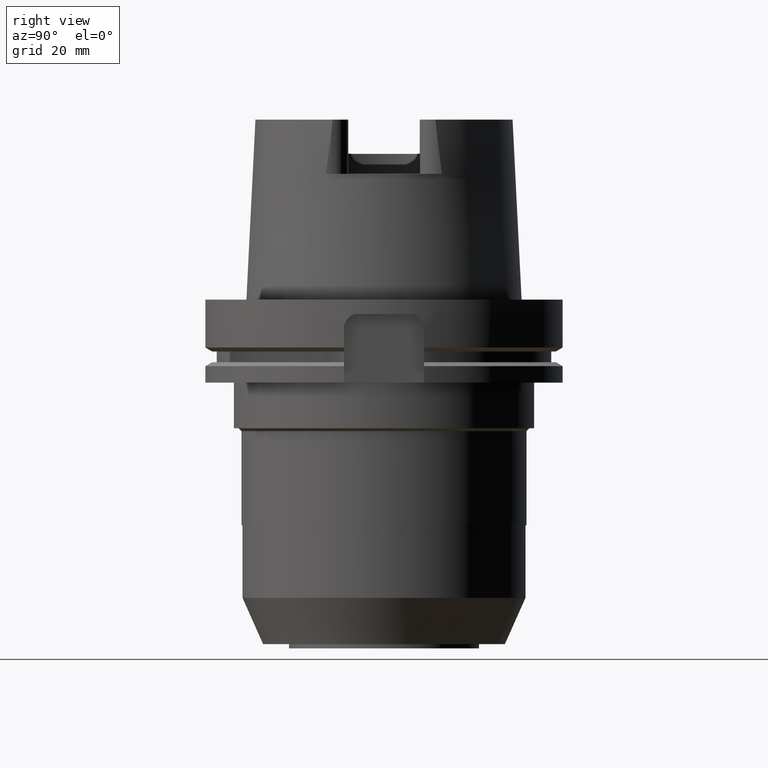
[diagram: clean part render]
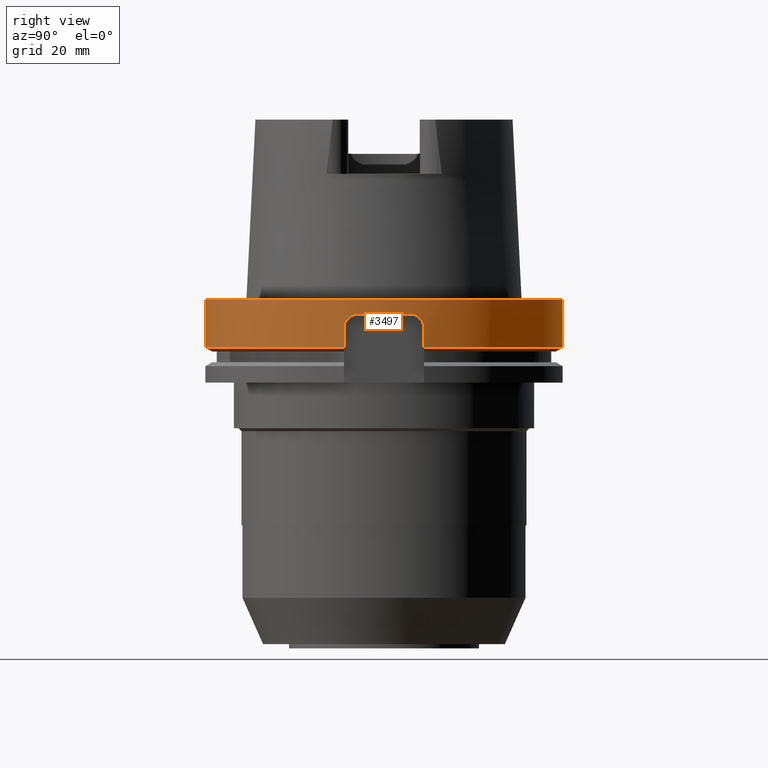
[diagram: same view with one face highlighted and labeled with its STEP entity id]
A machine part, right view. The second image highlights one B-rep face of the part: STEP entity #3497.
In plain terms, the highlighted cylindrical surface (partial cylindrical patch) has radius 62.5 mm, axis along (0, 0, -1).
Its self-contained STEP definition (entity closure, byte-faithful):
#1252=DIRECTION('',(0.E0,2.926591706721E-14,-1.E0));
#1253=VECTOR('',#1252,1.675240473581E1);
#1254=CARTESIAN_POINT('',(0.E0,-6.25E1,0.E0));
#1255=LINE('',#1254,#1253);
#1340=CARTESIAN_POINT('',(6.091182151274E1,1.4E1,-1.675240473581E1));
#1345=CARTESIAN_POINT('',(0.E0,0.E0,-1.675240473581E1));
#1346=DIRECTION('',(0.E0,0.E0,1.E0));
#1347=DIRECTION('',(9.745891442039E-1,2.24E-1,0.E0));
#1348=AXIS2_PLACEMENT_3D('',#1345,#1346,#1347);
#1479=DIRECTION('',(2.946386862117E-14,1.578421533277E-14,1.E0));
#1480=VECTOR('',#1479,6.752404735809E0);
#1481=CARTESIAN_POINT('',(6.091182151274E1,1.4E1,-1.675240473581E1));
#1482=LINE('',#1481,#1480);
#1486=CARTESIAN_POINT('',(6.091182151274E1,1.4E1,-1.E1));
#1487=CARTESIAN_POINT('',(6.091182151274E1,1.4E1,-9.561090195180E0));
#1488=CARTESIAN_POINT('',(6.093722467506E1,1.389029974657E1,-8.714107167379E0));
#1489=CARTESIAN_POINT('',(6.105119144551E1,1.338447949260E1,-7.479824479653E0));
#1490=CARTESIAN_POINT('',(6.121895504907E1,1.260088703764E1,-6.450656109137E0));
#1491=CARTESIAN_POINT('',(6.142708306067E1,1.155100012692E1,-5.630908137343E0));
#1492=CARTESIAN_POINT('',(6.164604924485E1,1.032322246993E1,-5.119345464170E0));
#1493=CARTESIAN_POINT('',(6.178262377614E1,9.453430717842E0,-5.E0));
#1494=CARTESIAN_POINT('',(6.184860548145E1,9.E0,-5.E0));
#1499=CARTESIAN_POINT('',(6.184860548145E1,-9.E0,-5.E0));
#1500=CARTESIAN_POINT('',(6.178368902328E1,-9.446110267873E0,-5.E0));
#1501=CARTESIAN_POINT('',(6.164892471239E1,-1.030578022913E1,
-5.115337822232E0));
#1502=CARTESIAN_POINT('',(6.143014168940E1,-1.153495266534E1,
-5.621158018290E0));
#1503=CARTESIAN_POINT('',(6.122062480589E1,-1.259299385552E1,
-6.441594614246E0));
#1504=CARTESIAN_POINT('',(6.105134025062E1,-1.338387708591E1,
-7.477131947001E0));
#1505=CARTESIAN_POINT('',(6.093692673359E1,-1.389159723700E1,
-8.718234342669E0));
#1506=CARTESIAN_POINT('',(6.091182151274E1,-1.4E1,-9.563181689449E0));
#1507=CARTESIAN_POINT('',(6.091182151274E1,-1.4E1,-1.E1));
#1512=DIRECTION('',(-3.051614964335E-14,1.446886405504E-14,-1.E0));
#1513=VECTOR('',#1512,6.752404735809E0);
#1514=CARTESIAN_POINT('',(6.091182151274E1,-1.4E1,-1.E1));
#1515=LINE('',#1514,#1513);
#1519=DIRECTION('',(0.E0,-3.011420451843E-14,-1.E0));
#1520=VECTOR('',#1519,1.675240473581E1);
#1521=CARTESIAN_POINT('',(0.E0,6.25E1,0.E0));
#1522=LINE('',#1521,#1520);
#1540=CARTESIAN_POINT('',(0.E0,1.497130711958E-14,-5.E0));
#1541=DIRECTION('',(0.E0,0.E0,1.E0));
#1542=DIRECTION('',(9.895776877032E-1,-1.44E-1,0.E0));
#1543=AXIS2_PLACEMENT_3D('',#1540,#1541,#1542);
#1580=CARTESIAN_POINT('',(0.E0,0.E0,-1.675240473581E1));
#1581=DIRECTION('',(0.E0,0.E0,1.E0));
#1582=DIRECTION('',(0.E0,-1.E0,0.E0));
#1583=AXIS2_PLACEMENT_3D('',#1580,#1581,#1582);
#1734=CARTESIAN_POINT('',(0.E0,1.497130711958E-14,0.E0));
#1735=DIRECTION('',(0.E0,0.E0,-1.E0));
#1736=DIRECTION('',(0.E0,1.E0,0.E0));
#1737=AXIS2_PLACEMENT_3D('',#1734,#1735,#1736);
#2260=CARTESIAN_POINT('',(0.E0,-6.25E1,-1.675240473581E1));
#2261=VERTEX_POINT('',#2260);
#2262=CARTESIAN_POINT('',(6.091182151274E1,-1.4E1,-1.675240473581E1));
#2263=VERTEX_POINT('',#2262);
#2264=VERTEX_POINT('',#1340);
#2265=CARTESIAN_POINT('',(0.E0,6.25E1,-1.675240473581E1));
#2266=VERTEX_POINT('',#2265);
#2268=CARTESIAN_POINT('',(0.E0,6.25E1,0.E0));
#2269=VERTEX_POINT('',#2268);
#2270=CARTESIAN_POINT('',(0.E0,-6.25E1,0.E0));
#2271=VERTEX_POINT('',#2270);
#2278=CARTESIAN_POINT('',(6.091182151274E1,1.4E1,-1.E1));
#2279=VERTEX_POINT('',#2278);
#2280=VERTEX_POINT('',#1494);
#2281=CARTESIAN_POINT('',(6.184860548145E1,-9.E0,-5.E0));
#2282=VERTEX_POINT('',#2281);
#2283=VERTEX_POINT('',#1507);
#3475=CARTESIAN_POINT('',(0.E0,1.497130711958E-14,7.225E1));
#3476=DIRECTION('',(0.E0,0.E0,-1.E0));
#3477=DIRECTION('',(0.E0,-1.E0,0.E0));
#3478=AXIS2_PLACEMENT_3D('',#3475,#3476,#3477);
#3479=CYLINDRICAL_SURFACE('',#3478,6.25E1);
#3480=ORIENTED_EDGE('',*,*,#3163,.T.);
#3482=ORIENTED_EDGE('',*,*,#3481,.T.);
#3484=ORIENTED_EDGE('',*,*,#3483,.F.);
#3486=ORIENTED_EDGE('',*,*,#3485,.T.);
#3487=ORIENTED_EDGE('',*,*,#3215,.T.);
#3489=ORIENTED_EDGE('',*,*,#3488,.F.);
#3490=ORIENTED_EDGE('',*,*,#3375,.F.);
#3492=ORIENTED_EDGE('',*,*,#3491,.F.);
#3493=ORIENTED_EDGE('',*,*,#3371,.T.);
#3494=ORIENTED_EDGE('',*,*,#3407,.F.);
#3495=EDGE_LOOP('',(#3480,#3482,#3484,#3486,#3487,#3489,#3490,#3492,#3493,
#3494));
#3496=FACE_OUTER_BOUND('',#3495,.F.);
#1349=CIRCLE('',#1348,6.25E1);
#1495=B_SPLINE_CURVE_WITH_KNOTS('',3,(#1486,#1487,#1488,#1489,#1490,#1491,#1492,
#1493,#1494),.UNSPECIFIED.,.F.,.F.,(4,1,1,1,1,1,4),(0.E0,1.666666666667E-1,
3.333333333333E-1,5.E-1,6.666666666667E-1,8.333333333333E-1,1.E0),
.UNSPECIFIED.);
#1508=B_SPLINE_CURVE_WITH_KNOTS('',3,(#1499,#1500,#1501,#1502,#1503,#1504,#1505,
#1506,#1507),.UNSPECIFIED.,.F.,.F.,(4,1,1,1,1,1,4),(0.E0,1.666666666667E-1,
3.333333333333E-1,5.E-1,6.666666666667E-1,8.333333333333E-1,1.E0),
.UNSPECIFIED.);
#1544=CIRCLE('',#1543,6.25E1);
#1584=CIRCLE('',#1583,6.25E1);
#1738=CIRCLE('',#1737,6.25E1);
#3163=EDGE_CURVE('',#2264,#2279,#1482,.T.);
#3215=EDGE_CURVE('',#2283,#2263,#1515,.T.);
#3371=EDGE_CURVE('',#2269,#2266,#1522,.T.);
#3375=EDGE_CURVE('',#2271,#2261,#1255,.T.);
#3407=EDGE_CURVE('',#2264,#2266,#1349,.T.);
#3481=EDGE_CURVE('',#2279,#2280,#1495,.T.);
#3483=EDGE_CURVE('',#2282,#2280,#1544,.T.);
#3485=EDGE_CURVE('',#2282,#2283,#1508,.T.);
#3488=EDGE_CURVE('',#2261,#2263,#1584,.T.);
#3491=EDGE_CURVE('',#2269,#2271,#1738,.T.);
#3497=ADVANCED_FACE('',(#3496),#3479,.T.);